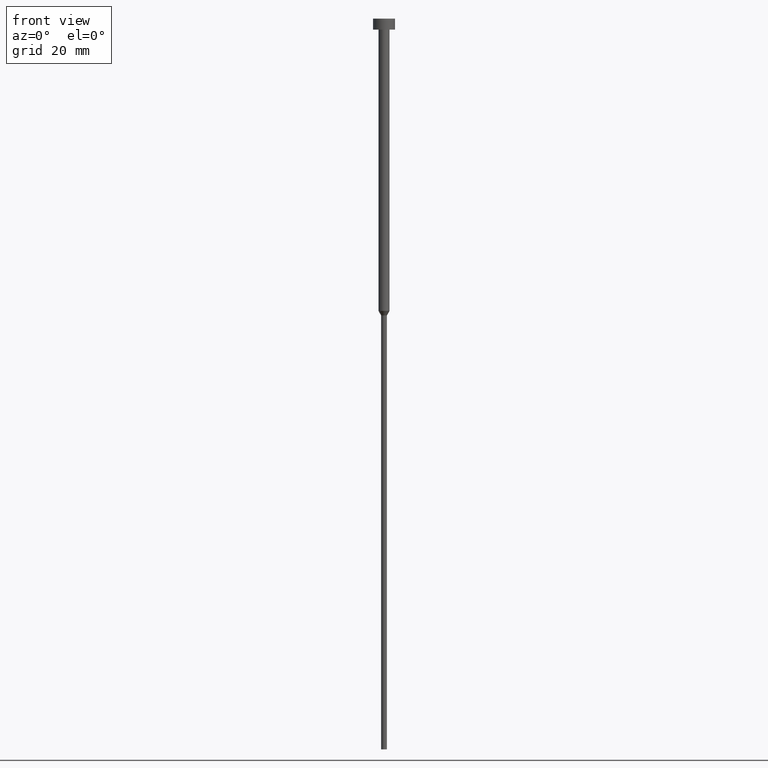
[diagram: clean part render]
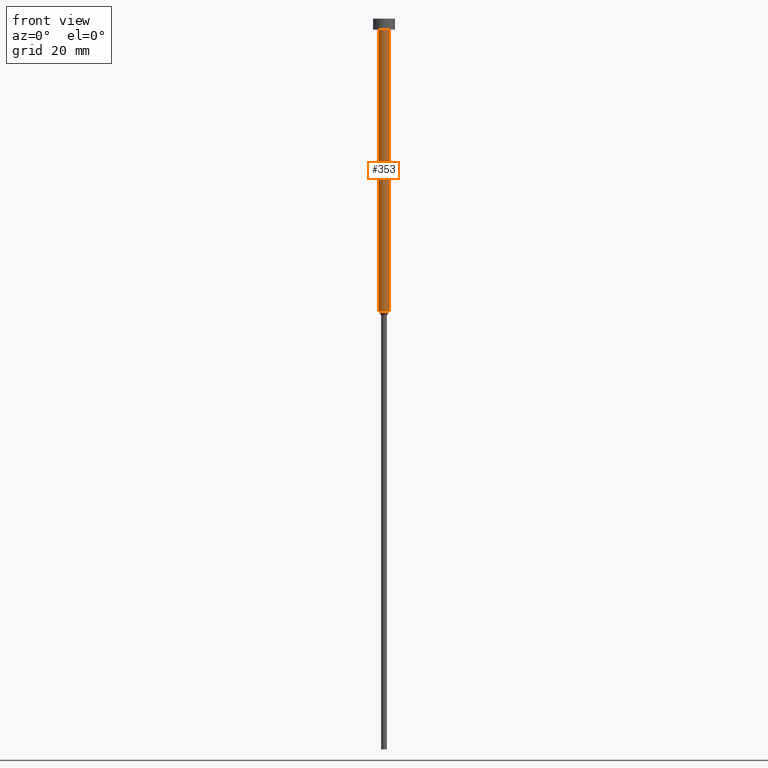
[diagram: same view with one face highlighted and labeled with its STEP entity id]
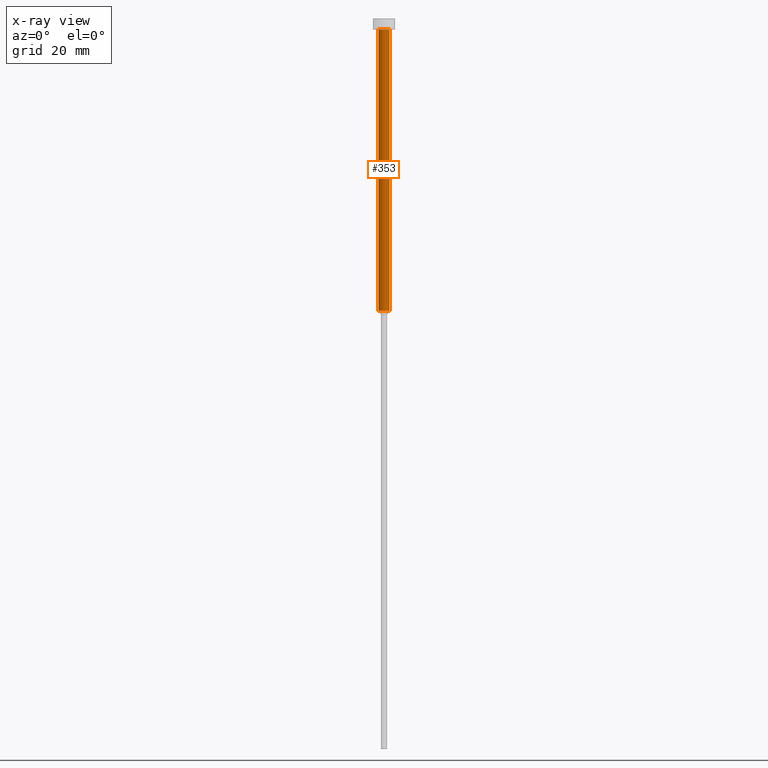
[diagram: x-ray of the same camera — body ghosted, the highlighted face saturated]
A machine part, front view. The second image highlights one B-rep face of the part: STEP entity #353.
The next image is the same camera in x-ray: the body ghosted, the highlighted face saturated — about 0% of this face is hidden behind the body in this view.
In plain terms, the highlighted cylindrical surface (edge-blend (fillet) strip) has radius 1.5 mm, axis along (-0, -0, 1).
Its self-contained STEP definition (entity closure, byte-faithful):
#2 = AXIS2_PLACEMENT_3D ( 'NONE', #238, #148, #14 ) ;
#14 = DIRECTION ( 'NONE',  ( 1.000000000000000000, 0.000000000000000000, 0.000000000000000000 ) ) ;
#15 = VERTEX_POINT ( 'NONE', #239 ) ;
#21 = VERTEX_POINT ( 'NONE', #128 ) ;
#30 = CYLINDRICAL_SURFACE ( 'NONE', #114, 1.500000000000000000 ) ;
#41 = ORIENTED_EDGE ( 'NONE', *, *, #263, .F. ) ;
#53 = ORIENTED_EDGE ( 'NONE', *, *, #243, .F. ) ;
#60 = LINE ( 'NONE', #221, #222 ) ;
#62 = CARTESIAN_POINT ( 'NONE',  ( 0.000000000000000000, 0.000000000000000000, 0.000000000000000000 ) ) ;
#69 = VERTEX_POINT ( 'NONE', #227 ) ;
#77 = ORIENTED_EDGE ( 'NONE', *, *, #305, .T. ) ;
#78 = CARTESIAN_POINT ( 'NONE',  ( -1.500000000000000000, 1.836970198721029934E-16, 0.000000000000000000 ) ) ;
#82 = VECTOR ( 'NONE', #129, 1000.000000000000000 ) ;
#105 = DIRECTION ( 'NONE',  ( 1.000000000000000000, 0.000000000000000000, 0.000000000000000000 ) ) ;
#107 = DIRECTION ( 'NONE',  ( -0.000000000000000000, -0.000000000000000000, 1.000000000000000000 ) ) ;
#114 = AXIS2_PLACEMENT_3D ( 'NONE', #62, #279, #105 ) ;
#118 = ORIENTED_EDGE ( 'NONE', *, *, #348, .T. ) ;
#123 = DIRECTION ( 'NONE',  ( -0.000000000000000000, -0.000000000000000000, 1.000000000000000000 ) ) ;
#128 = CARTESIAN_POINT ( 'NONE',  ( -1.500000000000000000, 1.836970198721029934E-16, -3.000000000000000888 ) ) ;
#129 = DIRECTION ( 'NONE',  ( -0.000000000000000000, -0.000000000000000000, 1.000000000000000000 ) ) ;
#148 = DIRECTION ( 'NONE',  ( -0.000000000000000000, -0.000000000000000000, 1.000000000000000000 ) ) ;
#152 = DIRECTION ( 'NONE',  ( 1.000000000000000000, 0.000000000000000000, 0.000000000000000000 ) ) ;
#161 = FACE_OUTER_BOUND ( 'NONE', #350, .T. ) ;
#163 = AXIS2_PLACEMENT_3D ( 'NONE', #318, #123, #152 ) ;
#176 = CIRCLE ( 'NONE', #163, 1.500000000000000000 ) ;
#178 = LINE ( 'NONE', #78, #82 ) ;
#189 = CIRCLE ( 'NONE', #2, 1.500000000000000000 ) ;
#210 = CARTESIAN_POINT ( 'NONE',  ( -1.500000000000000000, 1.836970198721029934E-16, -80.00000000000000000 ) ) ;
#221 = CARTESIAN_POINT ( 'NONE',  ( 1.500000000000000000, 0.000000000000000000, 0.000000000000000000 ) ) ;
#222 = VECTOR ( 'NONE', #107, 1000.000000000000000 ) ;
#227 = CARTESIAN_POINT ( 'NONE',  ( 1.500000000000000000, 0.000000000000000000, -3.000000000000000888 ) ) ;
#238 = CARTESIAN_POINT ( 'NONE',  ( 0.000000000000000000, 0.000000000000000000, -3.000000000000000888 ) ) ;
#239 = CARTESIAN_POINT ( 'NONE',  ( 1.500000000000000000, 0.000000000000000000, -80.00000000000000000 ) ) ;
#243 = EDGE_CURVE ( 'NONE', #21, #69, #189, .T. ) ;
#263 = EDGE_CURVE ( 'NONE', #264, #21, #178, .T. ) ;
#264 = VERTEX_POINT ( 'NONE', #210 ) ;
#279 = DIRECTION ( 'NONE',  ( -0.000000000000000000, -0.000000000000000000, 1.000000000000000000 ) ) ;
#305 = EDGE_CURVE ( 'NONE', #264, #15, #176, .T. ) ;
#318 = CARTESIAN_POINT ( 'NONE',  ( 0.000000000000000000, 0.000000000000000000, -80.00000000000000000 ) ) ;
#348 = EDGE_CURVE ( 'NONE', #15, #69, #60, .T. ) ;
#350 = EDGE_LOOP ( 'NONE', ( #41, #77, #118, #53 ) ) ;
#353 = ADVANCED_FACE ( 'NONE', ( #161 ), #30, .T. ) ;